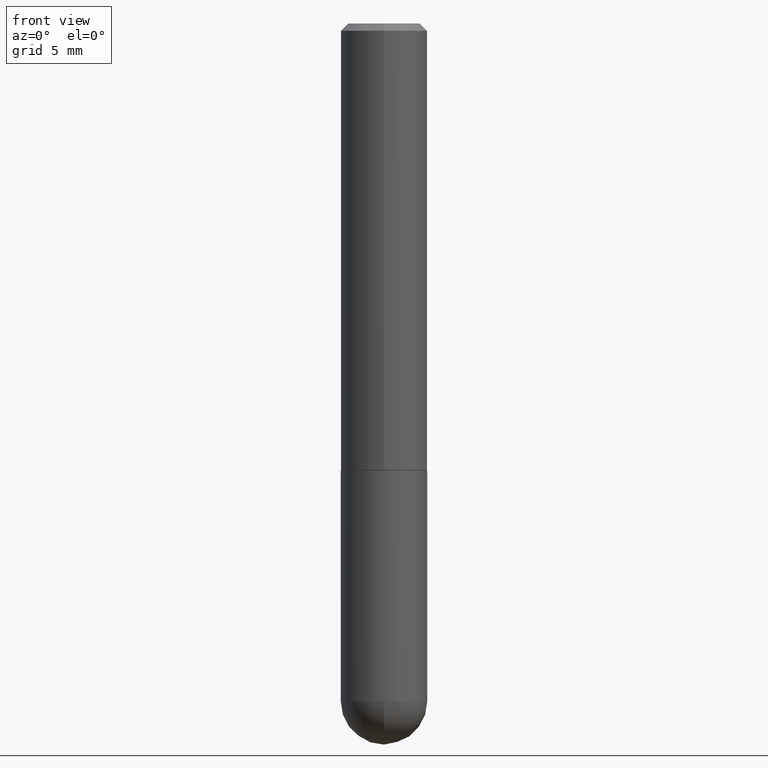
[diagram: clean part render]
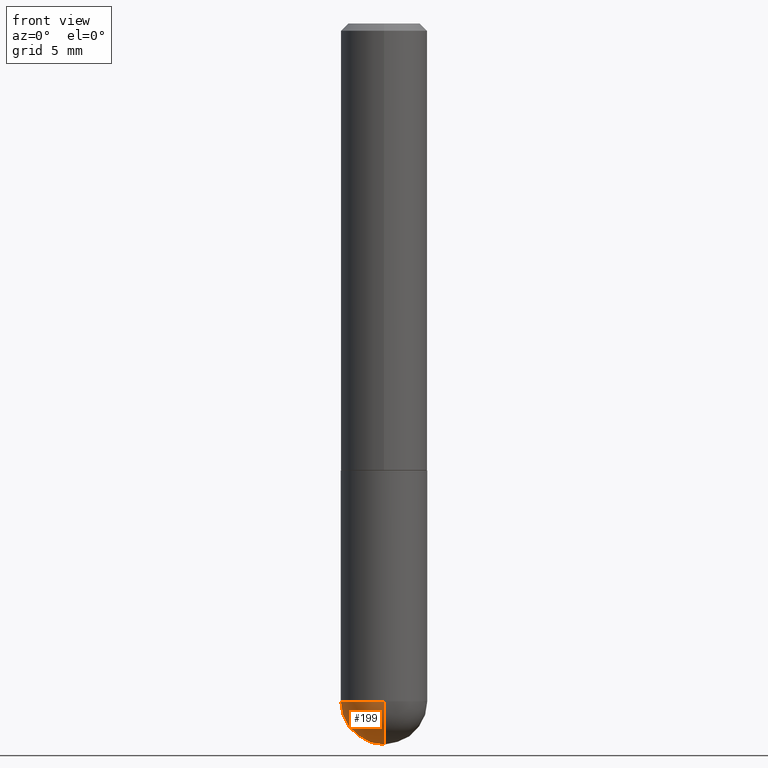
[diagram: same view with one face highlighted and labeled with its STEP entity id]
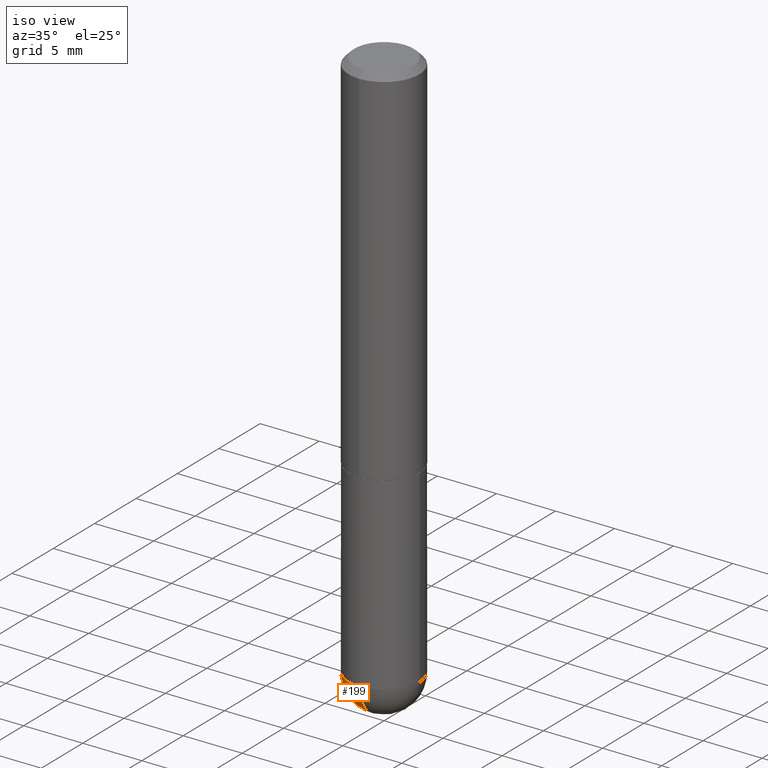
[diagram: same view with one face highlighted and labeled with its STEP entity id]
A machine part, front view. The second image highlights one B-rep face of the part: STEP entity #199.
A second angle (iso view) of the same face is appended — the face is thin or edge-on in the first view.
In plain terms, the highlighted spherical surface has radius 2.9997 mm.
Its self-contained STEP definition (entity closure, byte-faithful):
#22 = CIRCLE ( 'NONE', #272, 0.1180999999999999966 ) ;
#23 = DIRECTION ( 'NONE',  ( 1.000000000000000000, -6.982962677686265133E-15, 0.000000000000000000 ) ) ;
#30 = DIRECTION ( 'NONE',  ( -7.105427357601000281E-15, -1.000000000000000000, 0.000000000000000000 ) ) ;
#52 = CARTESIAN_POINT ( 'NONE',  ( 4.193975701051090586E-29, -6.934819437535407083E-15, -1.850400000000000045 ) ) ;
#70 = CARTESIAN_POINT ( 'NONE',  ( 4.193975701051090586E-29, -6.934819437535407083E-15, -1.850400000000000045 ) ) ;
#71 = EDGE_CURVE ( 'NONE', #243, #100, #22, .T. ) ;
#74 = DIRECTION ( 'NONE',  ( 1.000000000000000000, -6.982962677686265133E-15, 0.000000000000000000 ) ) ;
#78 = CARTESIAN_POINT ( 'NONE',  ( 8.246878922347925374E-16, 0.1180999999999934463, -1.850400000000000489 ) ) ;
#86 = ORIENTED_EDGE ( 'NONE', *, *, #88, .F. ) ;
#88 = EDGE_CURVE ( 'NONE', #392, #243, #410, .T. ) ;
#100 = VERTEX_POINT ( 'NONE', #359 ) ;
#109 = FACE_OUTER_BOUND ( 'NONE', #408, .T. ) ;
#122 = EDGE_CURVE ( 'NONE', #138, #392, #159, .T. ) ;
#138 = VERTEX_POINT ( 'NONE', #367 ) ;
#149 = DIRECTION ( 'NONE',  ( -2.445468806185136597E-29, 3.491481338843145583E-15, 1.000000000000000000 ) ) ;
#153 = AXIS2_PLACEMENT_3D ( 'NONE', #191, #342, #30 ) ;
#159 = CIRCLE ( 'NONE', #406, 0.1181000000000002603 ) ;
#167 = ORIENTED_EDGE ( 'NONE', *, *, #71, .F. ) ;
#178 = SPHERICAL_SURFACE ( 'NONE', #281, 0.1181000000000002603 ) ;
#191 = CARTESIAN_POINT ( 'NONE',  ( 4.193975701051090586E-29, -6.934819437535407083E-15, -1.850400000000000045 ) ) ;
#199 = ADVANCED_FACE ( 'NONE', ( #109 ), #178, .T. ) ;
#209 = DIRECTION ( 'NONE',  ( -1.000000000000000000, 6.982962677686265922E-15, -4.883557194083112901E-29 ) ) ;
#226 = EDGE_CURVE ( 'NONE', #138, #100, #356, .T. ) ;
#230 = AXIS2_PLACEMENT_3D ( 'NONE', #311, #149, #74 ) ;
#243 = VERTEX_POINT ( 'NONE', #310 ) ;
#259 = CARTESIAN_POINT ( 'NONE',  ( 4.525095478964976833E-29, -6.460637069395356787E-15, -1.850400000000000045 ) ) ;
#272 = AXIS2_PLACEMENT_3D ( 'NONE', #259, #294, #23 ) ;
#281 = AXIS2_PLACEMENT_3D ( 'NONE', #70, #209, #362 ) ;
#294 = DIRECTION ( 'NONE',  ( -2.445468806185136597E-29, 3.491481338843145583E-15, 1.000000000000000000 ) ) ;
#295 = ORIENTED_EDGE ( 'NONE', *, *, #226, .T. ) ;
#310 = CARTESIAN_POINT ( 'NONE',  ( -0.1180999999999999966, -4.521844050794030499E-15, -1.850400000000000045 ) ) ;
#311 = CARTESIAN_POINT ( 'NONE',  ( 4.525095478964976833E-29, -6.460637069395356787E-15, -1.850400000000000045 ) ) ;
#336 = DIRECTION ( 'NONE',  ( 1.000000000000000000, -6.982962677686265922E-15, 4.883557194083112340E-29 ) ) ;
#342 = DIRECTION ( 'NONE',  ( -1.000000000000000000, 7.105427357601001070E-15, -4.926315508542082329E-29 ) ) ;
#356 = CIRCLE ( 'NONE', #153, 0.1181000000000002603 ) ;
#359 = CARTESIAN_POINT ( 'NONE',  ( -8.391509709326354014E-16, -0.1181000000000068245, -1.850399999999999379 ) ) ;
#362 = DIRECTION ( 'NONE',  ( 6.982962677686265922E-15, 1.000000000000000000, -4.626330217890359870E-15 ) ) ;
#367 = CARTESIAN_POINT ( 'NONE',  ( 4.487835323999160412E-29, -7.339931844303818219E-15, -1.968500000000000361 ) ) ;
#373 = ORIENTED_EDGE ( 'NONE', *, *, #122, .F. ) ;
#392 = VERTEX_POINT ( 'NONE', #78 ) ;
#399 = DIRECTION ( 'NONE',  ( 6.982962677686265133E-15, 1.000000000000000000, 0.000000000000000000 ) ) ;
#406 = AXIS2_PLACEMENT_3D ( 'NONE', #52, #336, #399 ) ;
#408 = EDGE_LOOP ( 'NONE', ( #373, #295, #167, #86 ) ) ;
#410 = CIRCLE ( 'NONE', #230, 0.1180999999999999966 ) ;